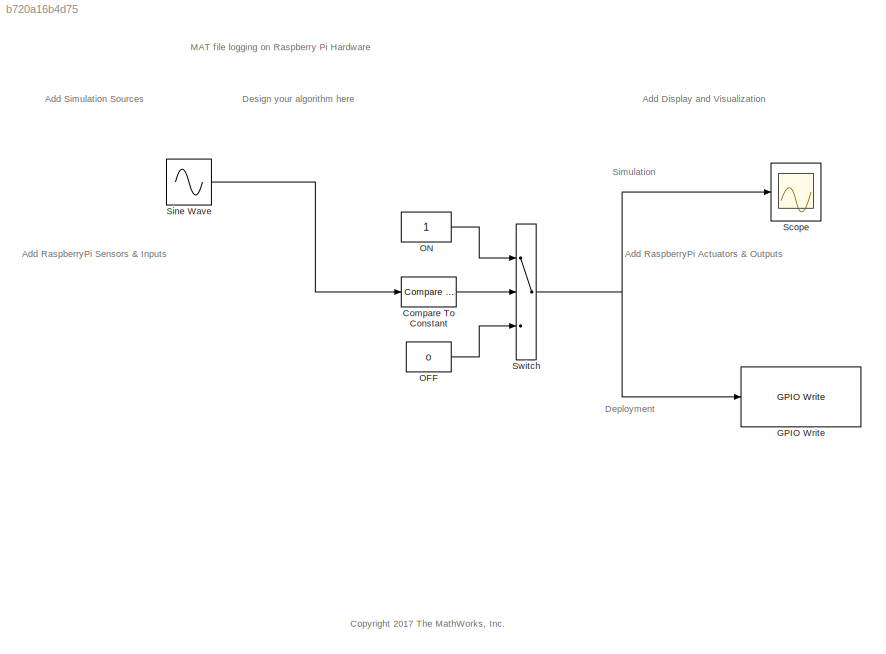
MODEL slx_b720a16b4d75
KIND model
CONFIG AbsTol = auto
CONFIG EnableMultiTasking = on
CONFIG FixedStep = auto
CONFIG MaxStep = auto
CONFIG MinStep = auto
CONFIG RelTol = 1e-3
CONFIG SampleTimeConstraint = Unconstrained
CONFIG Solver = ode45
CONFIG SolverName = ode45
CONFIG StartTime = 0.0
CONFIG StopTime = 10.0
BLOCK [Reference] Compare To Constant  REF=simulink/Logic and Bit
Operations/Compare
To Constant
  Ports = [1, 1]
  SourceBlock = simulink/Logic and Bit\nOperations/Compare\nTo Constant
  SourceProductBaseCode = SL
  SourceProductName = Simulink
  SourceType = Compare To Constant
BLOCK [Reference] GPIO Write  REF=embdlinuxlib/GPIO Write
  Ports = [1]
  SourceBlock = embdlinuxlib/GPIO Write
  SourceProductBaseCode = RASPPI
  SourceProductName = Simulink Support Package for Raspberry Pi Hardware
  SourceType = GPIO Write
BLOCK [Constant] OFF
  SampleTime = -1
  Value = 0
BLOCK [Constant] ON
  SampleTime = -1
BLOCK [Scope] Scope
  Floating = off
  NumInputPorts = 1
  Ports = [1]
  ScopeSpecificationString = Simulink.scopes.TimeScopeBlockCfg('CurrentConfiguration', extmgr.ConfigurationSet(extmgr.Configuration('Core','General UI',true),extmgr.Configuration('Core','Source UI',true),extmgr.Configuration('Sources','WiredSimulink',true,'DataLoggingLimitDataPoints',true,'DataLoggingSaveFormat','StructureWithTime','DataLoggingDecimation','1','DataLoggingDecimateData',true,'DataLogging',true),extmgr.Configura...<+1434ch>
BLOCK [Sin] Sine Wave
  Amplitude = 5
  Ports = [0, 1]
  SampleTime = 0.1
  SineType = Sample based
BLOCK [Switch] Switch
  Criteria = u2 > Threshold
  InputSameDT = off
  SaturateOnIntegerOverflow = off
ANNOTATION (root): Add Display and Visualization
ANNOTATION (root): Add RaspberryPi Actuators & Outputs
ANNOTATION (root): Add RaspberryPi Sensors & Inputs
ANNOTATION (root): Add Simulation Sources
ANNOTATION (root): <copyright redacted>
ANNOTATION (root): Deployment
ANNOTATION (root): Design your algorithm here
ANNOTATION (root): MAT file logging on Raspberry Pi Hardware
ANNOTATION (root): Simulation
LINE Compare To Constant:1 -> Switch:2
LINE OFF:1 -> Switch:3
LINE ON:1 -> Switch:1
LINE Sine Wave:1 -> Compare To Constant:1
NET Switch:1 -> GPIO Write:1, Scope:1
note: NET lines group one-source signal fan-out (src -> all destinations, sorted); 1:1 wires keep LINE
